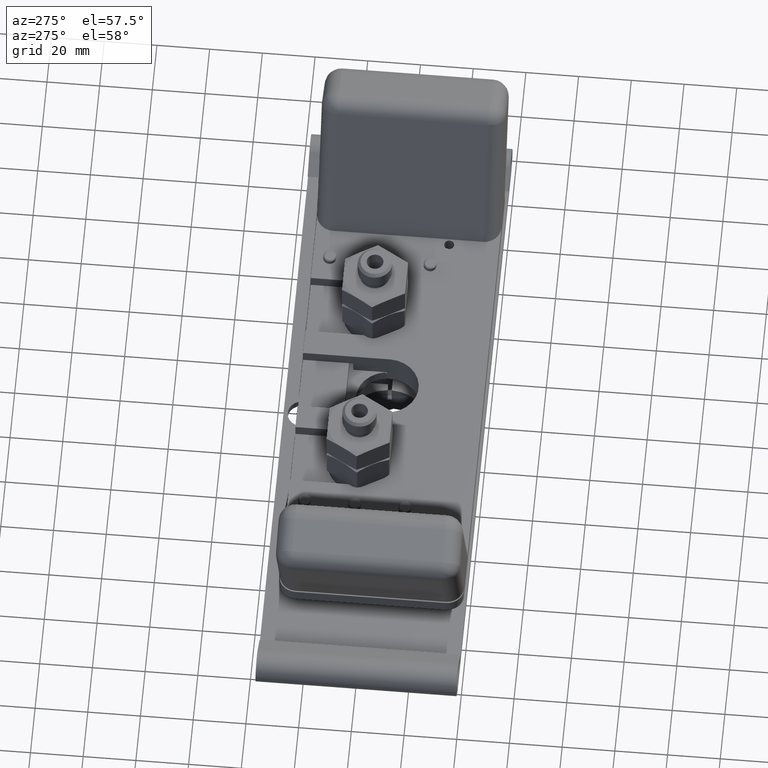
[diagram: clean part render]
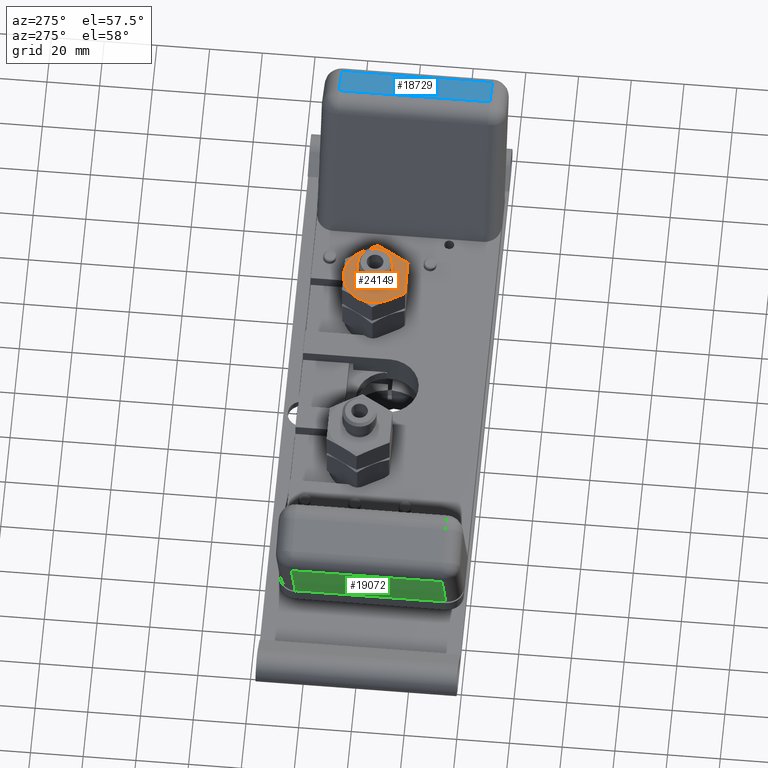
[diagram: same view with three faces highlighted in distinct colors, each labeled with its STEP entity id]
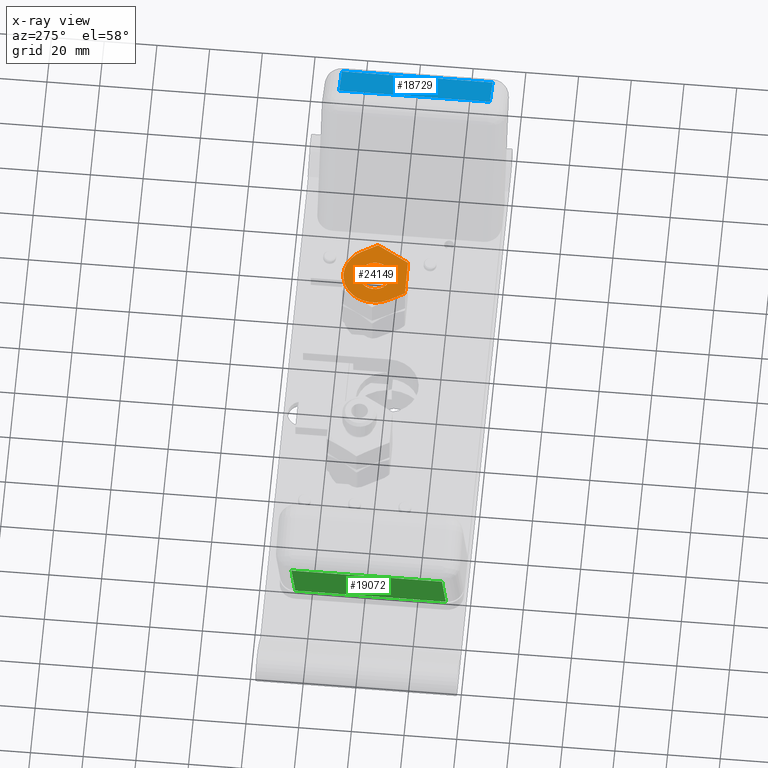
[diagram: x-ray of the same camera — body ghosted, the three highlighted faces saturated]
A machine part, auxiliary view with three faces highlighted in distinct colors.
The next image is the same camera in x-ray (body ghosted, the three faces saturated) — at least one of them is partly hidden behind the body in this view.
Their STEP definitions:

[orange] entity #24149 — the highlighted planar face has unit normal (0, 0, -1).
#6785=DIRECTION('',(-5.031880725236E-1,8.641769284527E-1,-1.079553880231E-13));
#6786=VECTOR('',#6785,2.715000000169E-1);
#6787=CARTESIAN_POINT('',(1.862778718063E0,1.751874358011E0,2.007E0));
#6788=LINE('',#6787,#6786);
#6789=CARTESIAN_POINT('',(1.329146193191E0,2.219910999180E0,2.007E0));
#6814=CARTESIAN_POINT('',(1.726163156364E0,1.986498394101E0,2.007E0));
#6820=CARTESIAN_POINT('',(1.32E0,1.75E0,2.007E0));
#6821=DIRECTION('',(0.E0,0.E0,-1.E0));
#6822=DIRECTION('',(1.945998552331E-2,9.998106365525E-1,0.E0));
#6823=AXIS2_PLACEMENT_3D('',#6820,#6821,#6822);
#6825=DIRECTION('',(-4.968051371426E-1,-8.678621179132E-1,0.E0));
#6826=VECTOR('',#6825,5.427092530385E-1);
#6827=CARTESIAN_POINT('',(1.862778718063E0,1.751874358011E0,2.007E0));
#6828=LINE('',#6827,#6826);
#6829=DIRECTION('',(-9.999932096663E-1,-3.685189460252E-3,0.E0));
#6830=VECTOR('',#6829,5.427092530387E-1);
#6831=CARTESIAN_POINT('',(1.593157973179E0,1.280877556258E0,2.007E0));
#6832=LINE('',#6831,#6830);
#6833=CARTESIAN_POINT('',(1.32E0,1.75E0,2.007E0));
#6834=DIRECTION('',(0.E0,0.E0,-1.E0));
#6835=DIRECTION('',(-8.641769284736E-1,-5.031880724878E-1,0.E0));
#6836=AXIS2_PLACEMENT_3D('',#6833,#6834,#6835);
#6838=DIRECTION('',(4.968051371446E-1,8.678621179120E-1,-5.266440467647E-12));
#6839=VECTOR('',#6838,2.175568428907E-2);
#6840=CARTESIAN_POINT('',(9.068098980703E-1,1.973995400996E0,2.007E0));
#6841=LINE('',#6840,#6839);
#6842=CARTESIAN_POINT('',(1.32E0,1.75E0,2.007E0));
#6843=DIRECTION('',(0.E0,0.E0,-1.E0));
#6844=DIRECTION('',(-8.561314174755E-1,5.167581600820E-1,0.E0));
#6845=AXIS2_PLACEMENT_3D('',#6842,#6843,#6844);
#6847=DIRECTION('',(9.999932096662E-1,3.685189465075E-3,5.266440466010E-12));
#6848=VECTOR('',#6847,2.175568429583E-2);
#6849=CARTESIAN_POINT('',(1.307390656623E0,2.219830825361E0,2.007E0));
#6850=LINE('',#6849,#6848);
#6851=CARTESIAN_POINT('',(1.32E0,1.75E0,2.007E0));
#6852=DIRECTION('',(0.E0,0.E0,1.E0));
#6853=DIRECTION('',(-5.031880725236E-1,8.641769284527E-1,0.E0));
#6854=AXIS2_PLACEMENT_3D('',#6851,#6852,#6853);
#6856=CARTESIAN_POINT('',(1.32E0,1.75E0,2.007E0));
#6857=DIRECTION('',(0.E0,0.E0,1.E0));
#6858=DIRECTION('',(5.031880725249E-1,-8.641769284520E-1,0.E0));
#6859=AXIS2_PLACEMENT_3D('',#6856,#6857,#6858);
#6869=DIRECTION('',(5.031880725231E-1,-8.641769284530E-1,1.079553880212E-13));
#6870=VECTOR('',#6869,2.715000000219E-1);
#6871=CARTESIAN_POINT('',(9.138368436160E-1,1.513501605933E0,2.007E0));
#6872=LINE('',#6871,#6870);
#13413=VERTEX_POINT('',#6814);
#13414=CARTESIAN_POINT('',(1.862778718063E0,1.751874358011E0,2.007E0));
#13415=VERTEX_POINT('',#13414);
#13416=VERTEX_POINT('',#6789);
#13417=CARTESIAN_POINT('',(1.307390656623E0,2.219830825361E0,2.007E0));
#13418=VERTEX_POINT('',#13417);
#13422=CARTESIAN_POINT('',(1.593157973179E0,1.280877556258E0,2.007E0));
#13423=VERTEX_POINT('',#13422);
#13424=CARTESIAN_POINT('',(1.050452405317E0,1.278877569839E0,2.007E0));
#13425=VERTEX_POINT('',#13424);
#13426=CARTESIAN_POINT('',(9.138368436160E-1,1.513501605933E0,2.007E0));
#13427=VERTEX_POINT('',#13426);
#13428=CARTESIAN_POINT('',(9.068098980705E-1,1.973995400996E0,2.007E0));
#13429=VERTEX_POINT('',#13428);
#13430=CARTESIAN_POINT('',(9.176182337872E-1,1.992876335240E0,2.007E0));
#13431=VERTEX_POINT('',#13430);
#13432=CARTESIAN_POINT('',(1.203008773138E0,1.950921135865E0,2.007E0));
#13433=CARTESIAN_POINT('',(1.436991226862E0,1.549078864135E0,2.007E0));
#13434=VERTEX_POINT('',#13432);
#13435=VERTEX_POINT('',#13433);
#24121=CARTESIAN_POINT('',(1.32E0,1.75E0,2.007E0));
#24122=DIRECTION('',(0.E0,0.E0,-1.E0));
#24123=DIRECTION('',(-5.031880725236E-1,8.641769284527E-1,0.E0));
#24124=AXIS2_PLACEMENT_3D('',#24121,#24122,#24123);
#24125=PLANE('',#24124);
#24126=ORIENTED_EDGE('',*,*,#24082,.T.);
#24127=ORIENTED_EDGE('',*,*,#24062,.F.);
#24129=ORIENTED_EDGE('',*,*,#24128,.T.);
#24131=ORIENTED_EDGE('',*,*,#24130,.T.);
#24133=ORIENTED_EDGE('',*,*,#24132,.F.);
#24135=ORIENTED_EDGE('',*,*,#24134,.T.);
#24137=ORIENTED_EDGE('',*,*,#24136,.T.);
#24139=ORIENTED_EDGE('',*,*,#24138,.T.);
#24140=ORIENTED_EDGE('',*,*,#24099,.T.);
#24141=EDGE_LOOP('',(#24126,#24127,#24129,#24131,#24133,#24135,#24137,#24139,
#24140));
#24142=FACE_OUTER_BOUND('',#24141,.F.);
#24144=ORIENTED_EDGE('',*,*,#24143,.T.);
#24146=ORIENTED_EDGE('',*,*,#24145,.T.);
#24147=EDGE_LOOP('',(#24144,#24146));
#24148=FACE_BOUND('',#24147,.F.);
#6824=CIRCLE('',#6823,4.7E-1);
#6837=CIRCLE('',#6836,4.7E-1);
#6846=CIRCLE('',#6845,4.699999999999E-1);
#6855=CIRCLE('',#6854,2.325E-1);
#6860=CIRCLE('',#6859,2.325E-1);
#24062=EDGE_CURVE('',#13415,#13413,#6788,.T.);
#24082=EDGE_CURVE('',#13416,#13413,#6824,.T.);
#24099=EDGE_CURVE('',#13418,#13416,#6850,.T.);
#24128=EDGE_CURVE('',#13415,#13423,#6828,.T.);
#24130=EDGE_CURVE('',#13423,#13425,#6832,.T.);
#24132=EDGE_CURVE('',#13427,#13425,#6872,.T.);
#24134=EDGE_CURVE('',#13427,#13429,#6837,.T.);
#24136=EDGE_CURVE('',#13429,#13431,#6841,.T.);
#24138=EDGE_CURVE('',#13431,#13418,#6846,.T.);
#24143=EDGE_CURVE('',#13434,#13435,#6855,.T.);
#24145=EDGE_CURVE('',#13435,#13434,#6860,.T.);
#24149=ADVANCED_FACE('',(#24142,#24148),#24125,.F.);

[blue] entity #18729 — the highlighted planar face has unit normal (0.3827, 0, 0.9239).
#3388=DIRECTION('',(-9.238795325114E-1,0.E0,3.826834323649E-1));
#3389=VECTOR('',#3388,4.999999999998E-1);
#3390=CARTESIAN_POINT('',(4.248782801251E0,2.5E0,2.988801315441E0));
#3391=LINE('',#3390,#3389);
#3392=DIRECTION('',(2.171102803711E-14,1.E0,5.250121325339E-14));
#3393=VECTOR('',#3392,2.25E0);
#3394=CARTESIAN_POINT('',(4.248782801251E0,2.5E-1,2.988801315440E0));
#3395=LINE('',#3394,#3393);
#3434=DIRECTION('',(9.238795325114E-1,0.E0,-3.826834323649E-1));
#3435=VECTOR('',#3434,4.999999999997E-1);
#3436=CARTESIAN_POINT('',(3.786843034995E0,2.5E-1,3.180143031623E0));
#3437=LINE('',#3436,#3435);
#3457=DIRECTION('',(1.065814103640E-14,-1.E0,-6.611994902212E-14));
#3458=VECTOR('',#3457,2.25E0);
#3459=CARTESIAN_POINT('',(3.786843034995E0,2.5E0,3.180143031623E0));
#3460=LINE('',#3459,#3458);
#11611=CARTESIAN_POINT('',(3.786843034995E0,2.5E0,3.180143031623E0));
#11612=VERTEX_POINT('',#11611);
#11613=CARTESIAN_POINT('',(4.248782801251E0,2.5E0,2.988801315441E0));
#11614=VERTEX_POINT('',#11613);
#11615=CARTESIAN_POINT('',(4.248782801251E0,2.5E-1,2.988801315440E0));
#11616=VERTEX_POINT('',#11615);
#11617=CARTESIAN_POINT('',(3.786843034995E0,2.5E-1,3.180143031623E0));
#11618=VERTEX_POINT('',#11617);
#18715=CARTESIAN_POINT('',(3.555873151867E0,2.75E0,3.275813889714E0));
#18716=DIRECTION('',(3.826834323651E-1,0.E0,9.238795325113E-1));
#18717=DIRECTION('',(0.E0,-1.E0,0.E0));
#18718=AXIS2_PLACEMENT_3D('',#18715,#18716,#18717);
#18719=PLANE('',#18718);
#18721=ORIENTED_EDGE('',*,*,#18720,.F.);
#18723=ORIENTED_EDGE('',*,*,#18722,.F.);
#18725=ORIENTED_EDGE('',*,*,#18724,.F.);
#18726=ORIENTED_EDGE('',*,*,#18699,.F.);
#18727=EDGE_LOOP('',(#18721,#18723,#18725,#18726));
#18728=FACE_OUTER_BOUND('',#18727,.F.);
#18699=EDGE_CURVE('',#11614,#11612,#3391,.T.);
#18720=EDGE_CURVE('',#11616,#11614,#3395,.T.);
#18722=EDGE_CURVE('',#11618,#11616,#3437,.T.);
#18724=EDGE_CURVE('',#11612,#11618,#3460,.T.);
#18729=ADVANCED_FACE('',(#18728),#18719,.T.);

[green] entity #19072 — the highlighted planar face has unit normal (-0.9239, 0, -0.3827).
#3505=DIRECTION('',(0.E0,1.E0,0.E0));
#3506=VECTOR('',#3505,2.25E0);
#3507=CARTESIAN_POINT('',(-4.384081826287E0,2.5E-1,2.662160574221E0));
#3508=LINE('',#3507,#3506);
#3524=DIRECTION('',(-3.826834323650E-1,0.E0,9.238795325113E-1));
#3525=VECTOR('',#3524,1.710786437627E0);
#3526=CARTESIAN_POINT('',(-3.729392200292E0,2.5E-1,1.0816E0));
#3527=LINE('',#3526,#3525);
#3528=CARTESIAN_POINT('',(-3.729392200293E0,2.5E-1,1.0816E0));
#3551=DIRECTION('',(0.E0,1.E0,0.E0));
#3552=VECTOR('',#3551,2.25E0);
#3553=CARTESIAN_POINT('',(-3.729392200292E0,2.5E-1,1.0816E0));
#3554=LINE('',#3553,#3552);
#3568=DIRECTION('',(3.826834323650E-1,0.E0,-9.238795325113E-1));
#3569=VECTOR('',#3568,1.710786437627E0);
#3570=CARTESIAN_POINT('',(-4.384081826287E0,2.5E0,2.662160574221E0));
#3571=LINE('',#3570,#3569);
#11629=CARTESIAN_POINT('',(-4.384081826287E0,2.5E-1,2.662160574221E0));
#11630=VERTEX_POINT('',#11629);
#11631=CARTESIAN_POINT('',(-4.384081826287E0,2.5E0,2.662160574221E0));
#11632=VERTEX_POINT('',#11631);
#11633=VERTEX_POINT('',#3528);
#11634=CARTESIAN_POINT('',(-3.729392200292E0,2.5E0,1.0816E0));
#11635=VERTEX_POINT('',#11634);
#19060=CARTESIAN_POINT('',(-3.570879532511E0,2.75E0,6.989165676349E-1));
#19061=DIRECTION('',(-9.238795325113E-1,0.E0,-3.826834323651E-1));
#19062=DIRECTION('',(0.E0,-1.E0,0.E0));
#19063=AXIS2_PLACEMENT_3D('',#19060,#19061,#19062);
#19064=PLANE('',#19063);
#19065=ORIENTED_EDGE('',*,*,#19044,.T.);
#19067=ORIENTED_EDGE('',*,*,#19066,.F.);
#19068=ORIENTED_EDGE('',*,*,#18985,.F.);
#19069=ORIENTED_EDGE('',*,*,#19025,.F.);
#19070=EDGE_LOOP('',(#19065,#19067,#19068,#19069));
#19071=FACE_OUTER_BOUND('',#19070,.F.);
#18985=EDGE_CURVE('',#11630,#11632,#3508,.T.);
#19025=EDGE_CURVE('',#11633,#11630,#3527,.T.);
#19044=EDGE_CURVE('',#11633,#11635,#3554,.T.);
#19066=EDGE_CURVE('',#11632,#11635,#3571,.T.);
#19072=ADVANCED_FACE('',(#19071),#19064,.T.);